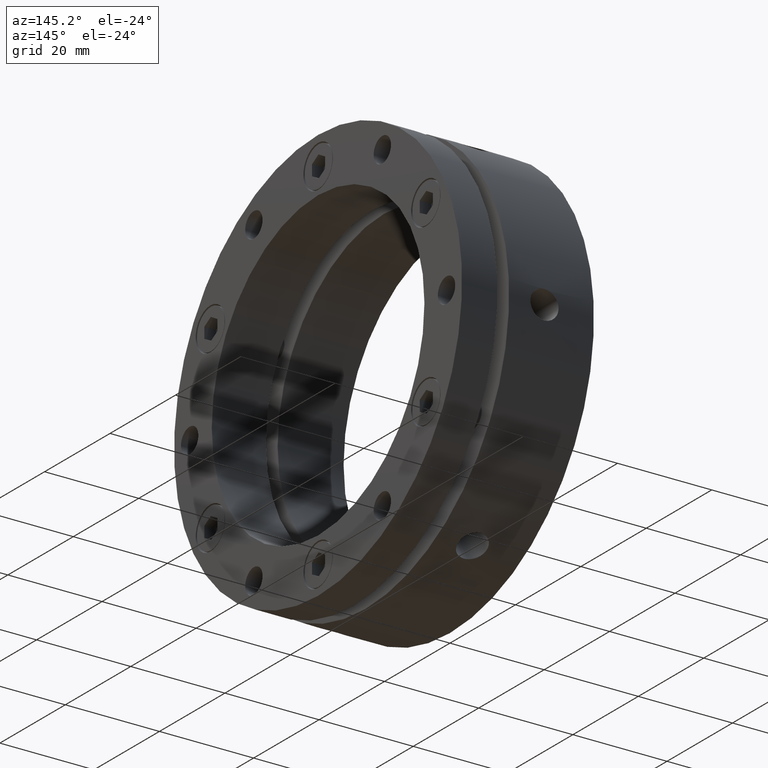
[diagram: clean part render]
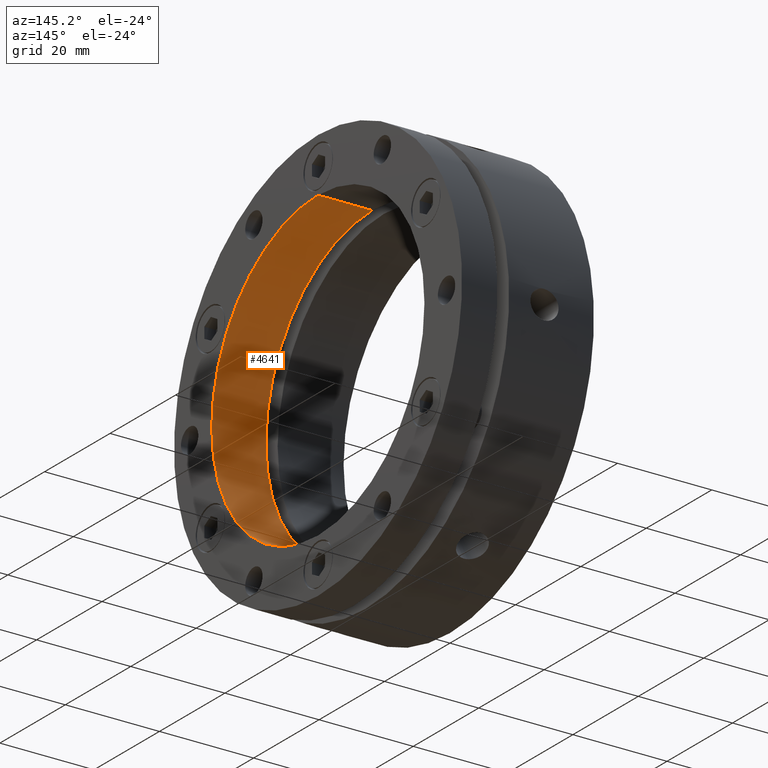
[diagram: same view with one face highlighted and labeled with its STEP entity id]
A machine part, auxiliary view. The second image highlights one B-rep face of the part: STEP entity #4641.
In plain terms, the highlighted cylindrical surface (partial cylindrical patch) has radius 32.5 mm, axis along (1, 0, 0).
Its self-contained STEP definition (entity closure, byte-faithful):
#414 = CARTESIAN_POINT ( 'NONE',  ( 27.99999999999999300, 0.0000000000000000000, 0.0000000000000000000 ) ) ;
#415 = DIRECTION ( 'NONE',  ( -1.000000000000000000, -0.0000000000000000000, -0.0000000000000000000 ) ) ;
#416 = DIRECTION ( 'NONE',  ( 0.0000000000000000000, 0.0000000000000000000, -1.000000000000000000 ) ) ;
#435 = DIRECTION ( 'NONE',  ( 1.000000000000000000, 0.0000000000000000000, 0.0000000000000000000 ) ) ;
#437 = CARTESIAN_POINT ( 'NONE',  ( 13.99999999999999300, 0.0000000000000000000, -32.50000000000000000 ) ) ;
#1119 = VERTEX_POINT ( 'NONE', #4351 ) ;
#1123 = VERTEX_POINT ( 'NONE', #4355 ) ;
#1128 = VERTEX_POINT ( 'NONE', #4360 ) ;
#1133 = VERTEX_POINT ( 'NONE', #4365 ) ;
#1281 = CIRCLE ( 'NONE', #3698, 32.50000000000000000 ) ;
#1297 = LINE ( 'NONE', #437, #1299 ) ;
#1299 = VECTOR ( 'NONE', #435, 1000.000000000000000 ) ;
#1624 = LINE ( 'NONE', #1965, #1628 ) ;
#1628 = VECTOR ( 'NONE', #1966, 1000.000000000000000 ) ;
#1647 = CIRCLE ( 'NONE', #3342, 32.50000000000000000 ) ;
#1720 = FACE_OUTER_BOUND ( 'NONE', #3538, .T. ) ;
#1730 = CYLINDRICAL_SURFACE ( 'NONE', #3370, 32.50000000000000000 ) ;
#1965 = CARTESIAN_POINT ( 'NONE',  ( 13.99999999999999300, 3.980102097228898600E-015, 32.50000000000000000 ) ) ;
#1966 = DIRECTION ( 'NONE',  ( 1.000000000000000000, 0.0000000000000000000, 0.0000000000000000000 ) ) ;
#2016 = CARTESIAN_POINT ( 'NONE',  ( 16.50000000000000400, 0.0000000000000000000, 0.0000000000000000000 ) ) ;
#2017 = DIRECTION ( 'NONE',  ( -1.000000000000000000, -0.0000000000000000000, -0.0000000000000000000 ) ) ;
#2018 = DIRECTION ( 'NONE',  ( 0.0000000000000000000, 0.0000000000000000000, -1.000000000000000000 ) ) ;
#2094 = DIRECTION ( 'NONE',  ( 0.0000000000000000000, 0.0000000000000000000, -1.000000000000000000 ) ) ;
#2096 = DIRECTION ( 'NONE',  ( 1.000000000000000000, 0.0000000000000000000, 0.0000000000000000000 ) ) ;
#2098 = CARTESIAN_POINT ( 'NONE',  ( 13.99999999999999300, 0.0000000000000000000, 0.0000000000000000000 ) ) ;
#3116 = EDGE_CURVE ( 'NONE', #1133, #1119, #1281, .T. ) ;
#3127 = EDGE_CURVE ( 'NONE', #1128, #1133, #1297, .T. ) ;
#3342 = AXIS2_PLACEMENT_3D ( 'NONE', #2016, #2017, #2018 ) ;
#3370 = AXIS2_PLACEMENT_3D ( 'NONE', #2098, #2096, #2094 ) ;
#3538 = EDGE_LOOP ( 'NONE', ( #3858, #3859, #3860, #3861 ) ) ;
#3698 = AXIS2_PLACEMENT_3D ( 'NONE', #414, #415, #416 ) ;
#3858 = ORIENTED_EDGE ( 'NONE', *, *, #4614, .T. ) ;
#3859 = ORIENTED_EDGE ( 'NONE', *, *, #4597, .T. ) ;
#3860 = ORIENTED_EDGE ( 'NONE', *, *, #3116, .F. ) ;
#3861 = ORIENTED_EDGE ( 'NONE', *, *, #3127, .F. ) ;
#4351 = CARTESIAN_POINT ( 'NONE',  ( 27.99999999999999300, 3.980102097228898600E-015, 32.50000000000000000 ) ) ;
#4355 = CARTESIAN_POINT ( 'NONE',  ( 16.50000000000000400, 3.980102097228898600E-015, 32.50000000000000000 ) ) ;
#4360 = CARTESIAN_POINT ( 'NONE',  ( 16.50000000000000400, 0.0000000000000000000, -32.50000000000000000 ) ) ;
#4365 = CARTESIAN_POINT ( 'NONE',  ( 27.99999999999999300, 0.0000000000000000000, -32.50000000000000000 ) ) ;
#4597 = EDGE_CURVE ( 'NONE', #1123, #1119, #1624, .T. ) ;
#4614 = EDGE_CURVE ( 'NONE', #1128, #1123, #1647, .T. ) ;
#4641 = ADVANCED_FACE ( 'NONE', ( #1720 ), #1730, .F. ) ;